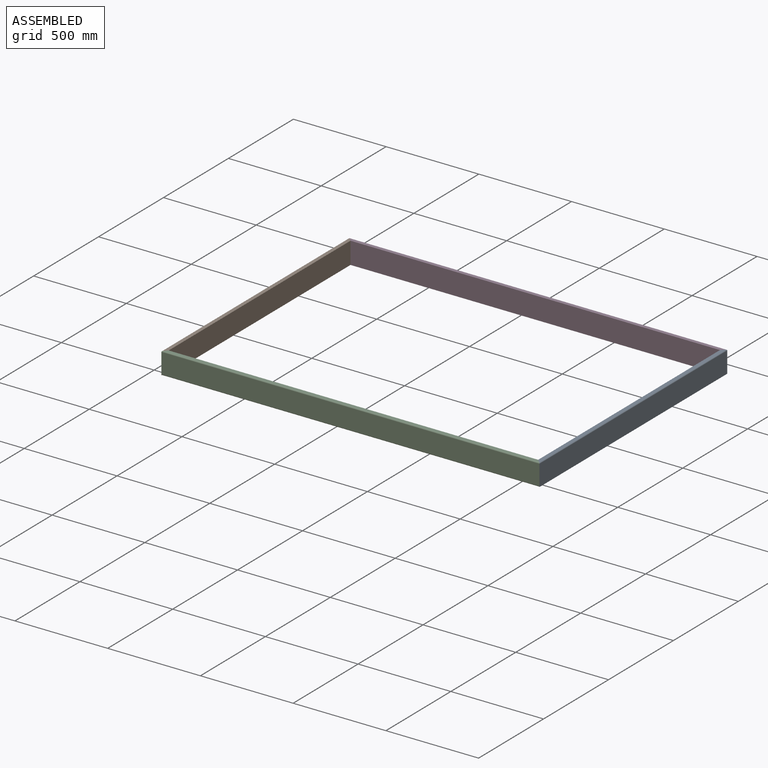
[diagram: assembled view]
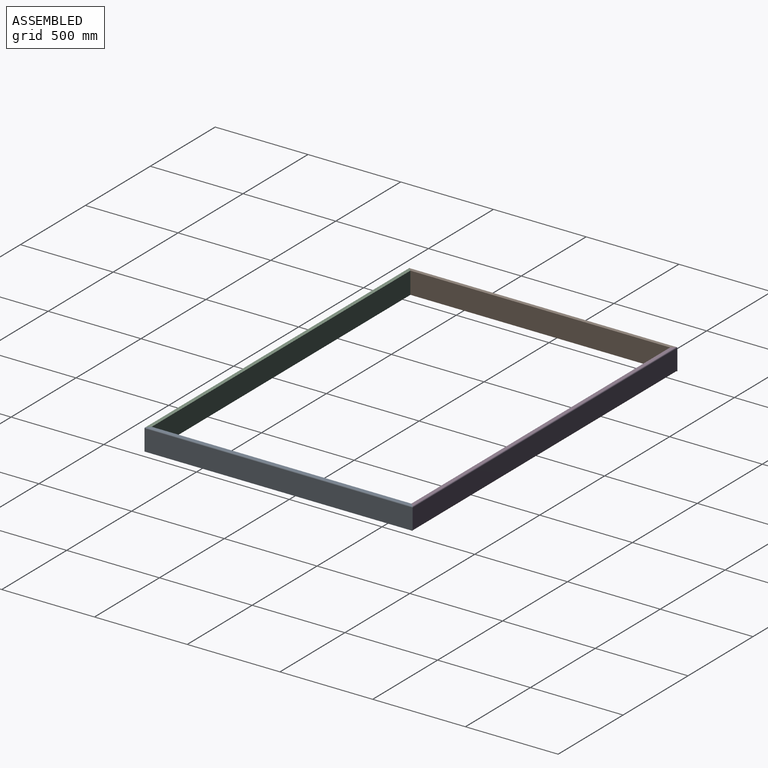
[diagram: assembled view, second angle]
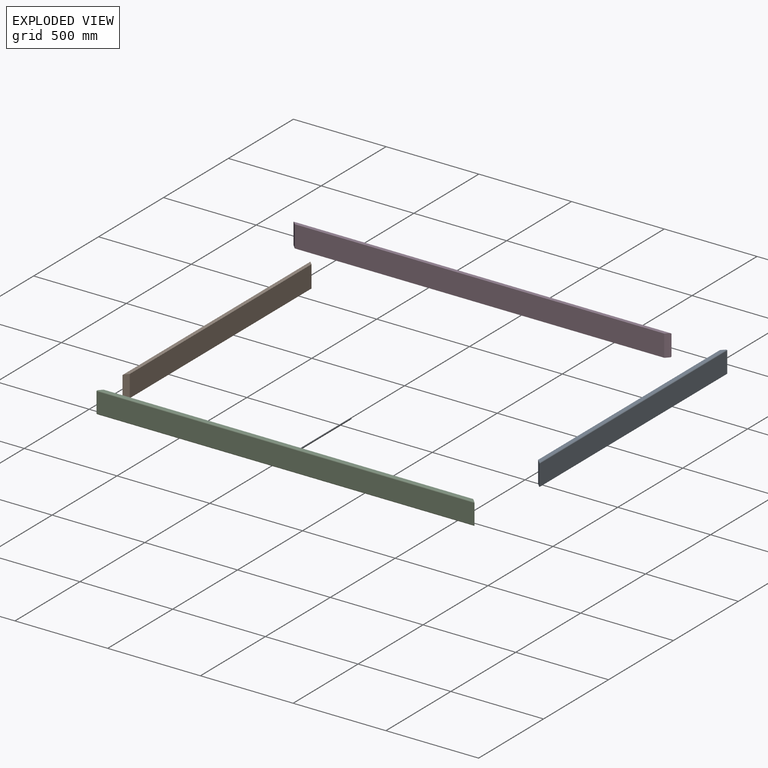
[diagram: exploded view]
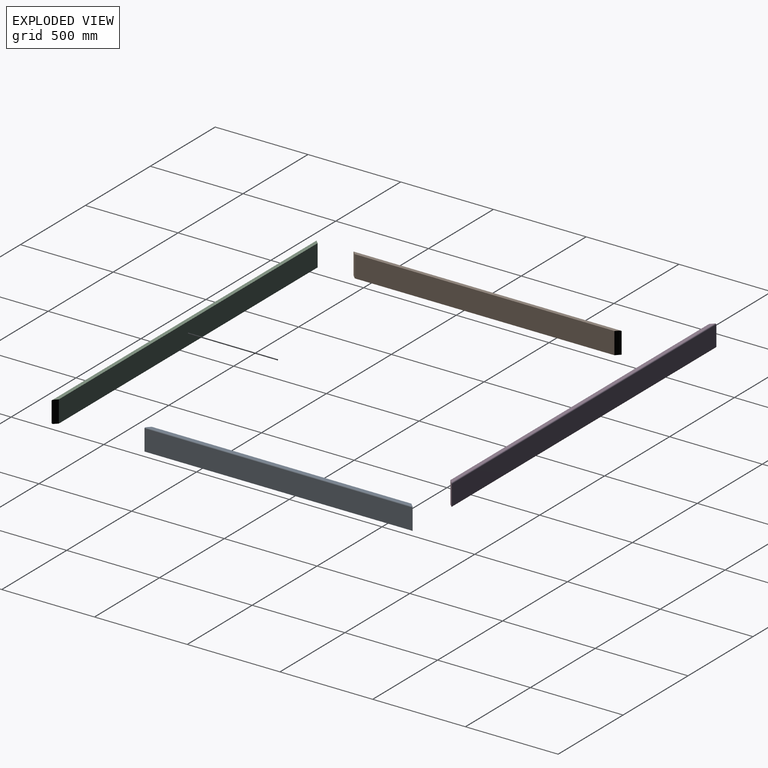
[diagram: exploded view, second angle]
ASSEMBLY  parts=4 mates=3
PART A: 7 faces, bbox 23x1446x118 mm
  f0: plane 1446x113mm, normal (1,0,0), area 163398mm2, adj f3,f4,f5,f6
  f1: plane 1436x18mm, normal (0,0,1), area 25524mm2, adj f2,f4,f5,f6
  f2: plane 1400x118mm, normal (-1,0,0), area 165200mm2, adj f1,f3,f5,f6
  f3: plane 1446x23mm, normal (0,0,-1), area 32729mm2, adj f0,f2,f5,f6
  f4: cylinder r=5mm len=1446mm, axis (0,1,0), area 11328.3mm2, adj f0,f1,f5,f6
  f5: plane 118x23mm, normal (-0.71,-0.71,0), area 3830.6mm2, adj f0,f1,f2,f3,f4
  f6: plane 118x23mm, normal (-0.71,0.71,0), area 3830.6mm2, adj f0,f1,f2,f3,f4
PART B: same geometry as A
PART C: 8 faces, bbox 23x2038x118 mm
  f0: plane 2038x108mm, normal (1,0,0), area 220104mm2, adj f4,f5,f6,f7
  f1: plane 2028x18mm, normal (0,0,1), area 36180mm2, adj f2,f4,f6,f7
  f2: plane 1992x118mm, normal (-1,0,0), area 235056mm2, adj f1,f3,f6,f7
  f3: plane 2028x18mm, normal (0,0,-1), area 36180mm2, adj f2,f5,f6,f7
  f4: cylinder r=5mm len=2038mm, axis (0,1,0), area 15977.9mm2, adj f0,f1,f6,f7
  f5: cylinder r=5mm len=2038mm, axis (0,1,0), area 15977.9mm2, adj f0,f3,f6,f7
  f6: plane 118x23mm, normal (-0.71,0.71,0), area 3823mm2, adj f0,f1,f2,f3,f4,f5
  f7: plane 118x23mm, normal (-0.71,-0.71,0), area 3823mm2, adj f0,f1,f2,f3,f4,f5
PART D: same geometry as C
PLACE A t=(1907.2,-1041.39,0)mm
PLACE B rot(axis=(0,0,1),180deg) t=(-107.8,-2487.39,0)mm
PLACE C rot(axis=(0,0,-1),90deg) t=(1918.7,-2475.89,0)mm
PLACE D rot(axis=(0,0,1),90deg) t=(-119.3,-1052.89,0)mm
MATE revolute D.f1 <-> B.f1  axis (0,0,1) through (-96.3,-1064.39,59)mm
MATE revolute C.f1 <-> A.f1  axis (0,0,1) through (1895.7,-2464.39,59)mm
MATE revolute A.f1 <-> D.f1  axis (0,0,1) through (1895.7,-1064.39,59)mm
